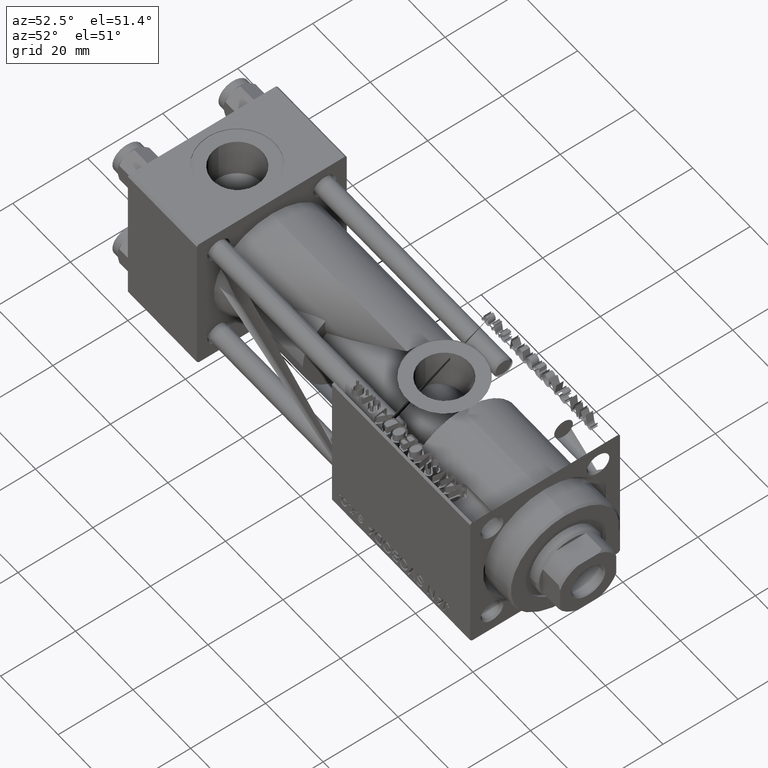
[diagram: clean part render]
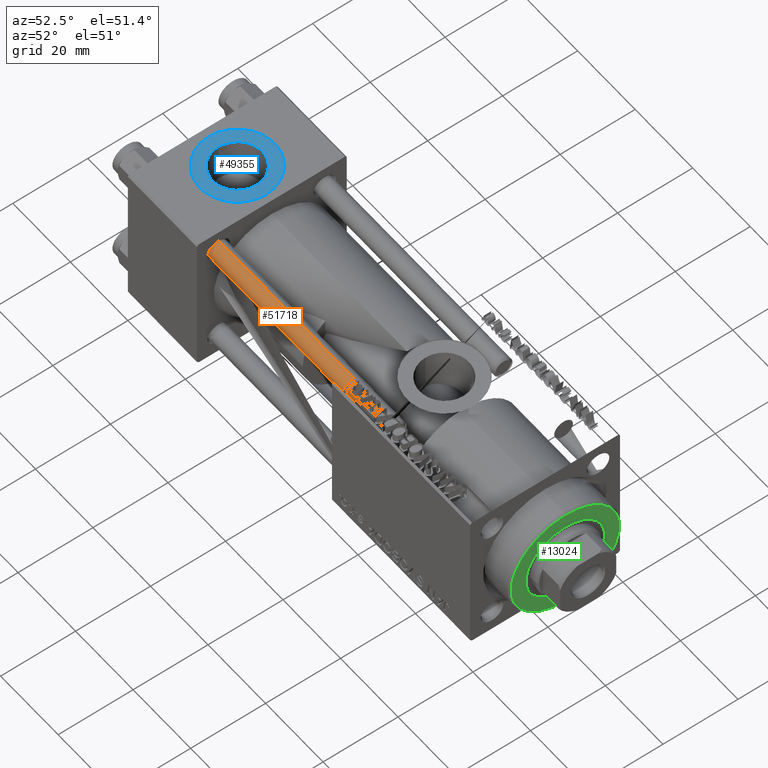
[diagram: same view with three faces highlighted in distinct colors, each labeled with its STEP entity id]
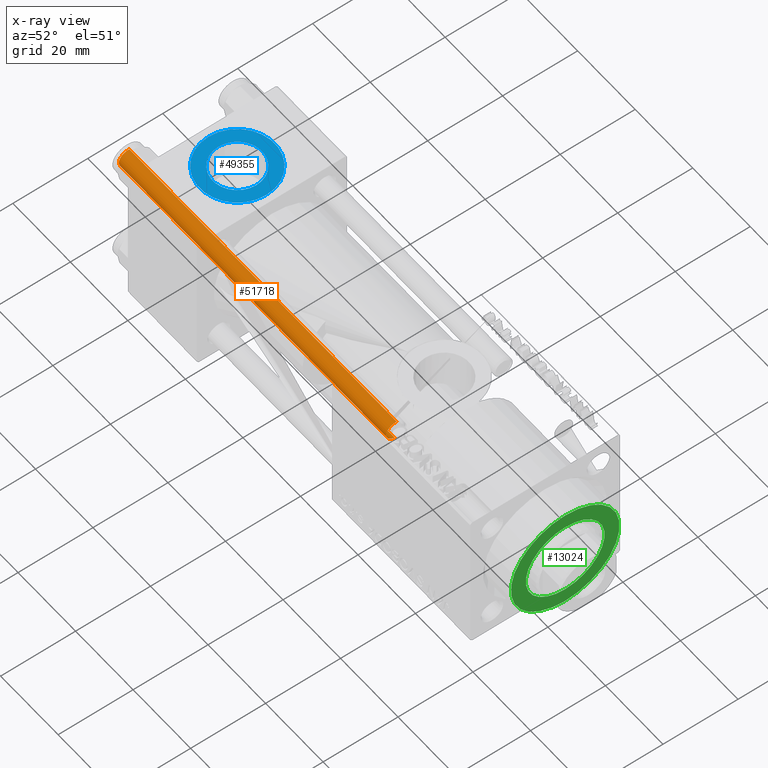
[diagram: x-ray of the same camera — body ghosted, the three highlighted faces saturated]
A machine part, auxiliary view with three faces highlighted in distinct colors.
The next image is the same camera in x-ray (body ghosted, the three faces saturated) — at least one of them is partly hidden behind the body in this view.
Their STEP definitions:

[orange] entity #51718 — the highlighted cylindrical surface (edge-blend (fillet) strip) has radius 2.5 mm, axis along (1, 0, -0).
#727 = EDGE_CURVE ( 'NONE', #40997, #17050, #11928, .T. ) ;
#1480 = FACE_OUTER_BOUND ( 'NONE', #21395, .T. ) ;
#3104 = EDGE_CURVE ( 'NONE', #35383, #10256, #26090, .T. ) ;
#5305 = CARTESIAN_POINT ( 'NONE',  ( -2.500000000000000000, 0.000000000000000000, 94.00000000000000000 ) ) ;
#5391 = DIRECTION ( 'NONE',  ( -1.000000000000000000, 0.000000000000000000, 0.000000000000000000 ) ) ;
#5643 = CIRCLE ( 'NONE', #25724, 2.500000000000000000 ) ;
#8053 = ORIENTED_EDGE ( 'NONE', *, *, #24848, .T. ) ;
#8663 = EDGE_CURVE ( 'NONE', #35383, #40997, #25279, .T. ) ;
#10256 = VERTEX_POINT ( 'NONE', #18129 ) ;
#11928 = LINE ( 'NONE', #40994, #22118 ) ;
#14643 = AXIS2_PLACEMENT_3D ( 'NONE', #41278, #45469, #5391 ) ;
#17050 = VERTEX_POINT ( 'NONE', #29866 ) ;
#18129 = CARTESIAN_POINT ( 'NONE',  ( -2.500000000000000000, 0.000000000000000000, 0.5000000000000004441 ) ) ;
#19367 = DIRECTION ( 'NONE',  ( -0.000000000000000000, -0.000000000000000000, 1.000000000000000000 ) ) ;
#21142 = DIRECTION ( 'NONE',  ( 1.000000000000000000, 0.000000000000000000, 0.000000000000000000 ) ) ;
#21395 = EDGE_LOOP ( 'NONE', ( #24558, #31498, #8053, #43288 ) ) ;
#22118 = VECTOR ( 'NONE', #28444, 1000.000000000000000 ) ;
#24558 = ORIENTED_EDGE ( 'NONE', *, *, #8663, .T. ) ;
#24848 = EDGE_CURVE ( 'NONE', #17050, #10256, #5643, .T. ) ;
#25279 = CIRCLE ( 'NONE', #31128, 2.500000000000000000 ) ;
#25724 = AXIS2_PLACEMENT_3D ( 'NONE', #31182, #19367, #51072 ) ;
#26090 = LINE ( 'NONE', #5305, #51618 ) ;
#28444 = DIRECTION ( 'NONE',  ( -0.000000000000000000, -0.000000000000000000, -1.000000000000000000 ) ) ;
#28458 = CARTESIAN_POINT ( 'NONE',  ( -2.500000000000000000, 0.000000000000000000, 93.50000000000001421 ) ) ;
#28979 = CYLINDRICAL_SURFACE ( 'NONE', #14643, 2.500000000000000000 ) ;
#29017 = DIRECTION ( 'NONE',  ( 0.000000000000000000, 0.000000000000000000, -1.000000000000000000 ) ) ;
#29866 = CARTESIAN_POINT ( 'NONE',  ( 2.500000000000000000, 3.061616997868383141E-16, 0.5000000000000004441 ) ) ;
#31128 = AXIS2_PLACEMENT_3D ( 'NONE', #37391, #29017, #21142 ) ;
#31182 = CARTESIAN_POINT ( 'NONE',  ( 0.000000000000000000, 0.000000000000000000, 0.5000000000000004441 ) ) ;
#31498 = ORIENTED_EDGE ( 'NONE', *, *, #727, .T. ) ;
#33089 = DIRECTION ( 'NONE',  ( -0.000000000000000000, -0.000000000000000000, -1.000000000000000000 ) ) ;
#33706 = CARTESIAN_POINT ( 'NONE',  ( 2.500000000000000000, 3.061616997868383141E-16, 93.50000000000001421 ) ) ;
#35383 = VERTEX_POINT ( 'NONE', #28458 ) ;
#37391 = CARTESIAN_POINT ( 'NONE',  ( 0.000000000000000000, 0.000000000000000000, 93.50000000000001421 ) ) ;
#40994 = CARTESIAN_POINT ( 'NONE',  ( 2.500000000000000000, 3.061616997868383141E-16, 94.00000000000000000 ) ) ;
#40997 = VERTEX_POINT ( 'NONE', #33706 ) ;
#41278 = CARTESIAN_POINT ( 'NONE',  ( 0.000000000000000000, 0.000000000000000000, 94.00000000000000000 ) ) ;
#43288 = ORIENTED_EDGE ( 'NONE', *, *, #3104, .F. ) ;
#45469 = DIRECTION ( 'NONE',  ( -0.000000000000000000, -0.000000000000000000, -1.000000000000000000 ) ) ;
#51072 = DIRECTION ( 'NONE',  ( 1.000000000000000000, 0.000000000000000000, 0.000000000000000000 ) ) ;
#51618 = VECTOR ( 'NONE', #33089, 1000.000000000000000 ) ;
#51718 = ADVANCED_FACE ( 'NONE', ( #1480 ), #28979, .T. ) ;

[blue] entity #49355 — the highlighted planar face has unit normal (0, 0, 1).
#1737 = CARTESIAN_POINT ( 'NONE',  ( 12.00000000000000000, 1.540743955509788682E-30, 19.79999999999999716 ) ) ;
#3555 = CIRCLE ( 'NONE', #30346, 6.579999999999999183 ) ;
#4468 = AXIS2_PLACEMENT_3D ( 'NONE', #5282, #45357, #13661 ) ;
#4970 = CARTESIAN_POINT ( 'NONE',  ( 18.57999999999999829, 1.540743955509788682E-30, 19.79999999999999716 ) ) ;
#5282 = CARTESIAN_POINT ( 'NONE',  ( 12.00000000000000000, 1.540743955509788682E-30, 19.79999999999999716 ) ) ;
#5807 = EDGE_LOOP ( 'NONE', ( #12675, #20589 ) ) ;
#6431 = DIRECTION ( 'NONE',  ( 1.000000000000000000, 0.000000000000000000, -0.000000000000000000 ) ) ;
#6872 = AXIS2_PLACEMENT_3D ( 'NONE', #33199, #48632, #32672 ) ;
#8244 = DIRECTION ( 'NONE',  ( 1.000000000000000000, 0.000000000000000000, 0.000000000000000000 ) ) ;
#9841 = EDGE_CURVE ( 'NONE', #26462, #29928, #3555, .T. ) ;
#12172 = CARTESIAN_POINT ( 'NONE',  ( 12.00000000000000000, 1.540743955509788682E-30, 19.79999999999999716 ) ) ;
#12675 = ORIENTED_EDGE ( 'NONE', *, *, #15821, .T. ) ;
#13661 = DIRECTION ( 'NONE',  ( 1.000000000000000000, 0.000000000000000000, 0.000000000000000000 ) ) ;
#13766 = FACE_BOUND ( 'NONE', #32426, .T. ) ;
#15384 = AXIS2_PLACEMENT_3D ( 'NONE', #1737, #42323, #6431 ) ;
#15821 = EDGE_CURVE ( 'NONE', #50310, #16734, #26253, .T. ) ;
#16734 = VERTEX_POINT ( 'NONE', #32554 ) ;
#16814 = ORIENTED_EDGE ( 'NONE', *, *, #24401, .F. ) ;
#17385 = CARTESIAN_POINT ( 'NONE',  ( 22.00000000000000000, 1.540743955509788682E-30, 19.79999999999999716 ) ) ;
#19721 = ORIENTED_EDGE ( 'NONE', *, *, #9841, .F. ) ;
#20589 = ORIENTED_EDGE ( 'NONE', *, *, #45239, .T. ) ;
#24033 = CIRCLE ( 'NONE', #50810, 6.579999999999999183 ) ;
#24401 = EDGE_CURVE ( 'NONE', #29928, #26462, #24033, .T. ) ;
#26253 = CIRCLE ( 'NONE', #4468, 9.999999999999998224 ) ;
#26462 = VERTEX_POINT ( 'NONE', #30254 ) ;
#29928 = VERTEX_POINT ( 'NONE', #4970 ) ;
#30254 = CARTESIAN_POINT ( 'NONE',  ( 5.420000000000000817, 8.058175938389596335E-16, 19.79999999999999716 ) ) ;
#30346 = AXIS2_PLACEMENT_3D ( 'NONE', #12172, #44136, #8244 ) ;
#30540 = DIRECTION ( 'NONE',  ( 1.000000000000000000, 0.000000000000000000, 0.000000000000000000 ) ) ;
#32426 = EDGE_LOOP ( 'NONE', ( #16814, #19721 ) ) ;
#32554 = CARTESIAN_POINT ( 'NONE',  ( 2.000000000000003553, 1.224646799147354440E-15, 19.79999999999999716 ) ) ;
#32672 = DIRECTION ( 'NONE',  ( 1.000000000000000000, 0.000000000000000000, 0.000000000000000000 ) ) ;
#33199 = CARTESIAN_POINT ( 'NONE',  ( 12.00000000000000000, 1.540743955509788682E-30, 19.79999999999999716 ) ) ;
#34216 = CARTESIAN_POINT ( 'NONE',  ( 12.00000000000000000, 1.540743955509788682E-30, 19.79999999999999716 ) ) ;
#34474 = DIRECTION ( 'NONE',  ( 0.000000000000000000, 0.000000000000000000, 1.000000000000000000 ) ) ;
#37613 = PLANE ( 'NONE',  #15384 ) ;
#42323 = DIRECTION ( 'NONE',  ( 0.000000000000000000, 0.000000000000000000, 1.000000000000000000 ) ) ;
#42850 = CIRCLE ( 'NONE', #6872, 9.999999999999998224 ) ;
#44136 = DIRECTION ( 'NONE',  ( 0.000000000000000000, 0.000000000000000000, 1.000000000000000000 ) ) ;
#45239 = EDGE_CURVE ( 'NONE', #16734, #50310, #42850, .T. ) ;
#45357 = DIRECTION ( 'NONE',  ( 0.000000000000000000, 0.000000000000000000, 1.000000000000000000 ) ) ;
#48632 = DIRECTION ( 'NONE',  ( 0.000000000000000000, 0.000000000000000000, 1.000000000000000000 ) ) ;
#49355 = ADVANCED_FACE ( 'NONE', ( #13766, #50428 ), #37613, .T. ) ;
#50310 = VERTEX_POINT ( 'NONE', #17385 ) ;
#50428 = FACE_OUTER_BOUND ( 'NONE', #5807, .T. ) ;
#50810 = AXIS2_PLACEMENT_3D ( 'NONE', #34216, #34474, #30540 ) ;

[green] entity #13024 — the highlighted planar face has unit normal (1, 0, 0).
#87 = PLANE ( 'NONE',  #17767 ) ;
#824 = ORIENTED_EDGE ( 'NONE', *, *, #47047, .T. ) ;
#1109 = CIRCLE ( 'NONE', #31224, 14.49999999999999112 ) ;
#1656 = CARTESIAN_POINT ( 'NONE',  ( 0.000000000000000000, 0.000000000000000000, 35.70000000000000284 ) ) ;
#3151 = EDGE_CURVE ( 'NONE', #19458, #21650, #17287, .T. ) ;
#3243 = FACE_OUTER_BOUND ( 'NONE', #12084, .T. ) ;
#3495 = FACE_BOUND ( 'NONE', #18684, .T. ) ;
#7677 = DIRECTION ( 'NONE',  ( 0.000000000000000000, 0.000000000000000000, 1.000000000000000000 ) ) ;
#12084 = EDGE_LOOP ( 'NONE', ( #824, #15470 ) ) ;
#13024 = ADVANCED_FACE ( 'NONE', ( #3495, #3243 ), #87, .T. ) ;
#13229 = CARTESIAN_POINT ( 'NONE',  ( 0.000000000000000000, 0.000000000000000000, 35.70000000000000284 ) ) ;
#14832 = CIRCLE ( 'NONE', #40733, 14.49999999999999112 ) ;
#15470 = ORIENTED_EDGE ( 'NONE', *, *, #27602, .T. ) ;
#15536 = DIRECTION ( 'NONE',  ( 1.000000000000000000, 0.000000000000000000, -0.000000000000000000 ) ) ;
#17287 = CIRCLE ( 'NONE', #40726, 10.50000000000000000 ) ;
#17767 = AXIS2_PLACEMENT_3D ( 'NONE', #27846, #7677, #15536 ) ;
#17958 = DIRECTION ( 'NONE',  ( 0.000000000000000000, 0.000000000000000000, 1.000000000000000000 ) ) ;
#18684 = EDGE_LOOP ( 'NONE', ( #40658, #27038 ) ) ;
#18913 = CARTESIAN_POINT ( 'NONE',  ( 0.000000000000000000, 0.000000000000000000, 35.70000000000000284 ) ) ;
#19458 = VERTEX_POINT ( 'NONE', #28187 ) ;
#21650 = VERTEX_POINT ( 'NONE', #49335 ) ;
#23597 = VERTEX_POINT ( 'NONE', #34783 ) ;
#27038 = ORIENTED_EDGE ( 'NONE', *, *, #48512, .F. ) ;
#27602 = EDGE_CURVE ( 'NONE', #39272, #23597, #14832, .T. ) ;
#27846 = CARTESIAN_POINT ( 'NONE',  ( 0.000000000000000000, 0.000000000000000000, 35.70000000000000284 ) ) ;
#27931 = DIRECTION ( 'NONE',  ( 1.000000000000000000, 0.000000000000000000, 0.000000000000000000 ) ) ;
#28187 = CARTESIAN_POINT ( 'NONE',  ( 10.50000000000000000, 0.000000000000000000, 35.70000000000000284 ) ) ;
#29415 = DIRECTION ( 'NONE',  ( 0.000000000000000000, 0.000000000000000000, 1.000000000000000000 ) ) ;
#31224 = AXIS2_PLACEMENT_3D ( 'NONE', #47829, #43908, #27931 ) ;
#31263 = CIRCLE ( 'NONE', #35442, 10.50000000000000000 ) ;
#34394 = DIRECTION ( 'NONE',  ( 0.000000000000000000, 0.000000000000000000, 1.000000000000000000 ) ) ;
#34783 = CARTESIAN_POINT ( 'NONE',  ( -14.49999999999999112, 0.000000000000000000, 35.70000000000000284 ) ) ;
#35442 = AXIS2_PLACEMENT_3D ( 'NONE', #13229, #17958, #45187 ) ;
#36556 = CARTESIAN_POINT ( 'NONE',  ( 14.49999999999999112, 1.806354028742345013E-15, 35.70000000000000284 ) ) ;
#39086 = DIRECTION ( 'NONE',  ( 1.000000000000000000, 0.000000000000000000, 0.000000000000000000 ) ) ;
#39272 = VERTEX_POINT ( 'NONE', #36556 ) ;
#40658 = ORIENTED_EDGE ( 'NONE', *, *, #3151, .F. ) ;
#40726 = AXIS2_PLACEMENT_3D ( 'NONE', #1656, #29415, #49837 ) ;
#40733 = AXIS2_PLACEMENT_3D ( 'NONE', #18913, #34394, #39086 ) ;
#43908 = DIRECTION ( 'NONE',  ( 0.000000000000000000, 0.000000000000000000, 1.000000000000000000 ) ) ;
#45187 = DIRECTION ( 'NONE',  ( 1.000000000000000000, 0.000000000000000000, 0.000000000000000000 ) ) ;
#47047 = EDGE_CURVE ( 'NONE', #23597, #39272, #1109, .T. ) ;
#47829 = CARTESIAN_POINT ( 'NONE',  ( 0.000000000000000000, 0.000000000000000000, 35.70000000000000284 ) ) ;
#48512 = EDGE_CURVE ( 'NONE', #21650, #19458, #31263, .T. ) ;
#49335 = CARTESIAN_POINT ( 'NONE',  ( -10.50000000000000000, 1.285879139104720831E-15, 35.70000000000000284 ) ) ;
#49837 = DIRECTION ( 'NONE',  ( 1.000000000000000000, 0.000000000000000000, 0.000000000000000000 ) ) ;